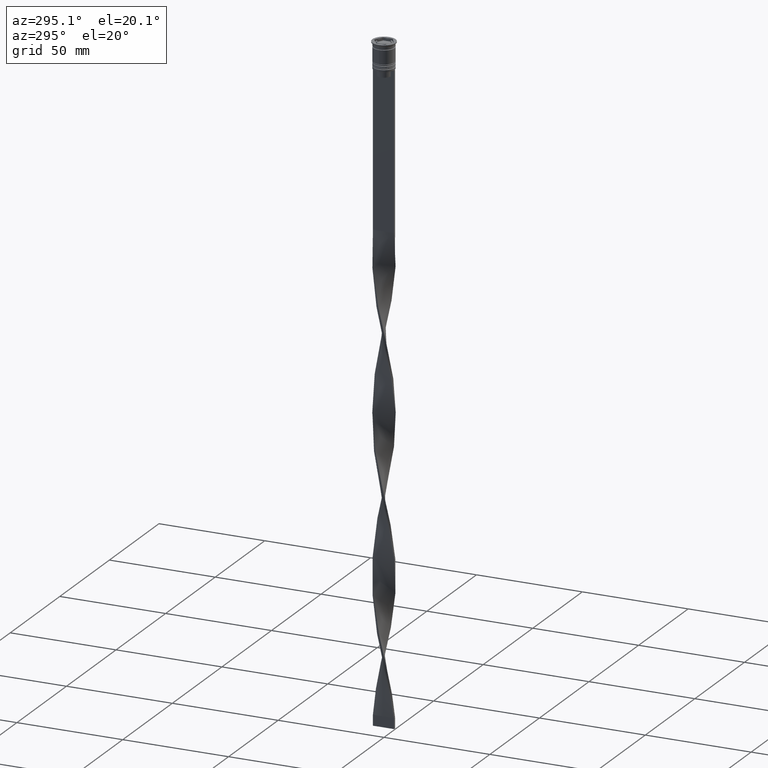
[diagram: clean part render]
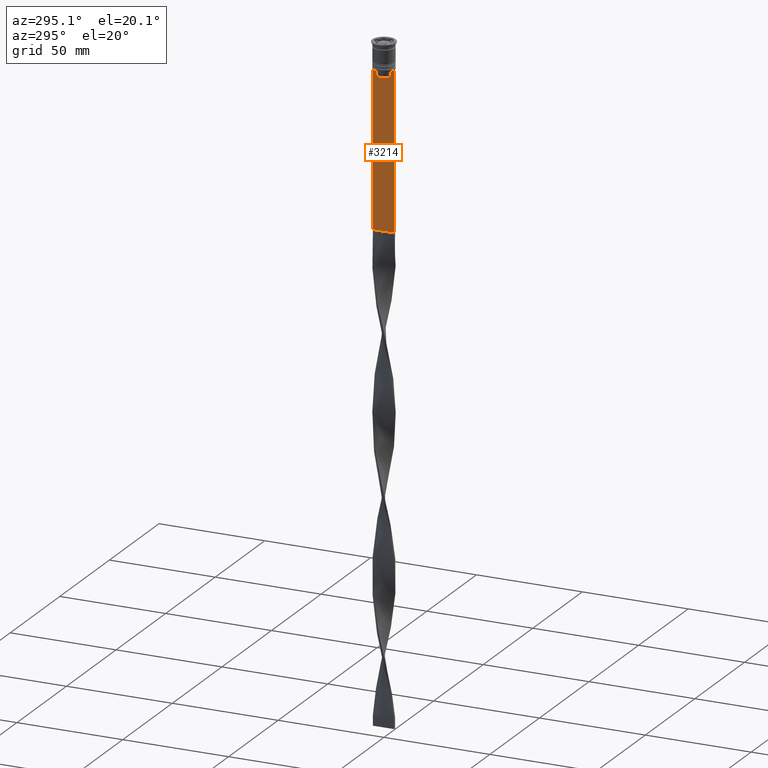
[diagram: same view with one face highlighted and labeled with its STEP entity id]
A machine part, auxiliary view. The second image highlights one B-rep face of the part: STEP entity #3214.
In plain terms, the highlighted planar face has unit normal (-1, 0, 0).
Its self-contained STEP definition (entity closure, byte-faithful):
#67 = ORIENTED_EDGE ( 'NONE', *, *, #2808, .F. ) ;
#178 = CARTESIAN_POINT ( 'NONE',  ( -0.5000000000000000000, 5.000000000000000888, -12.50000000000000000 ) ) ;
#200 = CARTESIAN_POINT ( 'NONE',  ( -0.5000000000000000000, -4.999999999999999112, -86.50000000000000000 ) ) ;
#251 = EDGE_CURVE ( 'NONE', #1096, #3737, #529, .T. ) ;
#310 = VERTEX_POINT ( 'NONE', #2619 ) ;
#334 = LINE ( 'NONE', #1951, #3707 ) ;
#495 = B_SPLINE_CURVE_WITH_KNOTS ( 'NONE', 3,
 ( #3459, #2160, #2795, #2541 ),
 .UNSPECIFIED., .F., .F.,
 ( 4, 4 ),
 ( 0.006644825462451552783, 0.007355321358912435097 ),
 .UNSPECIFIED. ) ;
#529 = LINE ( 'NONE', #1784, #2493 ) ;
#546 = DIRECTION ( 'NONE',  ( 0.000000000000000000, -1.000000000000000000, 0.000000000000000000 ) ) ;
#687 = CARTESIAN_POINT ( 'NONE',  ( -0.5000000000000000000, -3.699658232838647365, -12.66676999593996555 ) ) ;
#689 = EDGE_CURVE ( 'NONE', #2698, #1113, #495, .T. ) ;
#697 = ORIENTED_EDGE ( 'NONE', *, *, #3238, .F. ) ;
#792 = VECTOR ( 'NONE', #3616, 1000.000000000000000 ) ;
#797 = EDGE_CURVE ( 'NONE', #1210, #2698, #3150, .T. ) ;
#868 = DIRECTION ( 'NONE',  ( 0.000000000000000000, 1.000000000000000000, 0.000000000000000000 ) ) ;
#900 = VERTEX_POINT ( 'NONE', #3853 ) ;
#916 = VECTOR ( 'NONE', #1418, 1000.000000000000000 ) ;
#935 = DIRECTION ( 'NONE',  ( 0.000000000000000000, 0.000000000000000000, -1.000000000000000000 ) ) ;
#1007 = CARTESIAN_POINT ( 'NONE',  ( -0.5000000000000000000, -3.531412985305424801, -12.83345201382502765 ) ) ;
#1085 = CARTESIAN_POINT ( 'NONE',  ( -0.5000000000000000000, 3.399999999999998135, -15.50000000000000000 ) ) ;
#1096 = VERTEX_POINT ( 'NONE', #1143 ) ;
#1113 = VERTEX_POINT ( 'NONE', #2464 ) ;
#1143 = CARTESIAN_POINT ( 'NONE',  ( -0.5000000000000000000, -3.867815921162742754, -12.50000000000000000 ) ) ;
#1160 = VERTEX_POINT ( 'NONE', #1161 ) ;
#1161 = CARTESIAN_POINT ( 'NONE',  ( -0.5000000000000000000, 3.363034344160045652, -15.50000000000000000 ) ) ;
#1171 = EDGE_LOOP ( 'NONE', ( #2275, #3714, #3738, #2325, #697, #3278, #2376, #1615, #1298, #3036, #2524, #67 ) ) ;
#1199 = EDGE_CURVE ( 'NONE', #310, #1637, #2482, .T. ) ;
#1204 = DIRECTION ( 'NONE',  ( 0.000000000000000000, 0.000000000000000000, 1.000000000000000000 ) ) ;
#1210 = VERTEX_POINT ( 'NONE', #3098 ) ;
#1226 = DIRECTION ( 'NONE',  ( 0.000000000000000000, 0.000000000000000000, -1.000000000000000000 ) ) ;
#1253 = VECTOR ( 'NONE', #3438, 1000.000000000000000 ) ;
#1298 = ORIENTED_EDGE ( 'NONE', *, *, #2191, .F. ) ;
#1310 = CARTESIAN_POINT ( 'NONE',  ( -0.5000000000000000000, 3.363034344160045208, 0.000000000000000000 ) ) ;
#1395 = VECTOR ( 'NONE', #868, 1000.000000000000000 ) ;
#1418 = DIRECTION ( 'NONE',  ( -0.000000000000000000, -0.000000000000000000, 1.000000000000000000 ) ) ;
#1455 = VECTOR ( 'NONE', #4110, 1000.000000000000000 ) ;
#1459 = LINE ( 'NONE', #3885, #916 ) ;
#1481 = LINE ( 'NONE', #200, #1395 ) ;
#1615 = ORIENTED_EDGE ( 'NONE', *, *, #251, .F. ) ;
#1625 = LINE ( 'NONE', #1310, #1658 ) ;
#1637 = VERTEX_POINT ( 'NONE', #3351 ) ;
#1658 = VECTOR ( 'NONE', #935, 1000.000000000000000 ) ;
#1673 = CARTESIAN_POINT ( 'NONE',  ( -0.5000000000000000000, 5.000000000000000888, -2.450124378879110054 ) ) ;
#1686 = EDGE_CURVE ( 'NONE', #2269, #4057, #1459, .T. ) ;
#1784 = CARTESIAN_POINT ( 'NONE',  ( -0.5000000000000000000, -4.999999999999999112, -12.50000000000000000 ) ) ;
#1951 = CARTESIAN_POINT ( 'NONE',  ( -0.5000000000000000000, -4.999999999999999112, -12.50000000000000000 ) ) ;
#1998 = LINE ( 'NONE', #1673, #1253 ) ;
#2095 = LINE ( 'NONE', #3375, #3642 ) ;
#2113 = FACE_OUTER_BOUND ( 'NONE', #1171, .T. ) ;
#2160 = CARTESIAN_POINT ( 'NONE',  ( -0.5000000000000000000, 3.699657965831574913, -12.66677026074361301 ) ) ;
#2191 = EDGE_CURVE ( 'NONE', #4057, #1096, #2779, .T. ) ;
#2265 = EDGE_CURVE ( 'NONE', #3223, #900, #1998, .T. ) ;
#2266 = CARTESIAN_POINT ( 'NONE',  ( -0.5000000000000000000, -3.867815921162742754, -12.50000000000000000 ) ) ;
#2269 = VERTEX_POINT ( 'NONE', #2931 ) ;
#2275 = ORIENTED_EDGE ( 'NONE', *, *, #689, .F. ) ;
#2325 = ORIENTED_EDGE ( 'NONE', *, *, #2265, .T. ) ;
#2376 = ORIENTED_EDGE ( 'NONE', *, *, #2825, .F. ) ;
#2418 = CARTESIAN_POINT ( 'NONE',  ( -0.5000000000000000000, -4.999999999999999112, -2.450124378879110054 ) ) ;
#2464 = CARTESIAN_POINT ( 'NONE',  ( -0.5000000000000000000, 3.363034344160045208, -13.00000000000000178 ) ) ;
#2482 = LINE ( 'NONE', #4098, #3572 ) ;
#2493 = VECTOR ( 'NONE', #546, 1000.000000000000000 ) ;
#2524 = ORIENTED_EDGE ( 'NONE', *, *, #3137, .F. ) ;
#2541 = CARTESIAN_POINT ( 'NONE',  ( -0.5000000000000000000, 3.363034344160045208, -13.00000000000000178 ) ) ;
#2619 = CARTESIAN_POINT ( 'NONE',  ( -0.5000000000000000000, -4.999999999999999112, -12.50000000000000000 ) ) ;
#2668 = LINE ( 'NONE', #1085, #792 ) ;
#2698 = VERTEX_POINT ( 'NONE', #3721 ) ;
#2779 = B_SPLINE_CURVE_WITH_KNOTS ( 'NONE', 3,
 ( #3460, #1007, #687, #2266 ),
 .UNSPECIFIED., .F., .F.,
 ( 4, 4 ),
 ( 0.01632394437298965648, 0.01703543518243618576 ),
 .UNSPECIFIED. ) ;
#2790 = CARTESIAN_POINT ( 'NONE',  ( -0.5000000000000000000, -4.874423042781575788, -12.50000000000000000 ) ) ;
#2795 = CARTESIAN_POINT ( 'NONE',  ( -0.5000000000000000000, 3.531412678228260216, -12.83345231756357840 ) ) ;
#2808 = EDGE_CURVE ( 'NONE', #1113, #1160, #1625, .T. ) ;
#2825 = EDGE_CURVE ( 'NONE', #3737, #310, #334, .T. ) ;
#2841 = CARTESIAN_POINT ( 'NONE',  ( -0.5000000000000000000, -4.999999999999999112, -12.50000000000000000 ) ) ;
#2858 = AXIS2_PLACEMENT_3D ( 'NONE', #2418, #3065, #1204 ) ;
#2931 = CARTESIAN_POINT ( 'NONE',  ( -0.5000000000000000000, -3.363034344160045652, -15.50000000000000000 ) ) ;
#3036 = ORIENTED_EDGE ( 'NONE', *, *, #1686, .F. ) ;
#3065 = DIRECTION ( 'NONE',  ( -1.000000000000000000, 0.000000000000000000, 0.000000000000000000 ) ) ;
#3098 = CARTESIAN_POINT ( 'NONE',  ( -0.5000000000000000000, 4.874423042781575788, -12.50000000000000000 ) ) ;
#3137 = EDGE_CURVE ( 'NONE', #1160, #2269, #2668, .T. ) ;
#3150 = LINE ( 'NONE', #2841, #1455 ) ;
#3214 = ADVANCED_FACE ( 'NONE', ( #2113 ), #3720, .T. ) ;
#3223 = VERTEX_POINT ( 'NONE', #178 ) ;
#3238 = EDGE_CURVE ( 'NONE', #1637, #900, #1481, .T. ) ;
#3278 = ORIENTED_EDGE ( 'NONE', *, *, #1199, .F. ) ;
#3351 = CARTESIAN_POINT ( 'NONE',  ( -0.5000000000000000000, -4.999999999999999112, -86.50000000000000000 ) ) ;
#3375 = CARTESIAN_POINT ( 'NONE',  ( -0.5000000000000000000, -4.999999999999999112, -12.50000000000000000 ) ) ;
#3438 = DIRECTION ( 'NONE',  ( 0.000000000000000000, 0.000000000000000000, -1.000000000000000000 ) ) ;
#3459 = CARTESIAN_POINT ( 'NONE',  ( -0.5000000000000000000, 3.867815921162742754, -12.50000000000000000 ) ) ;
#3460 = CARTESIAN_POINT ( 'NONE',  ( -0.5000000000000000000, -3.363034344160045208, -13.00000000000000178 ) ) ;
#3474 = DIRECTION ( 'NONE',  ( 0.000000000000000000, -1.000000000000000000, 0.000000000000000000 ) ) ;
#3572 = VECTOR ( 'NONE', #1226, 1000.000000000000000 ) ;
#3616 = DIRECTION ( 'NONE',  ( 0.000000000000000000, -1.000000000000000000, 0.000000000000000000 ) ) ;
#3642 = VECTOR ( 'NONE', #3742, 1000.000000000000000 ) ;
#3707 = VECTOR ( 'NONE', #3474, 1000.000000000000000 ) ;
#3714 = ORIENTED_EDGE ( 'NONE', *, *, #797, .F. ) ;
#3720 = PLANE ( 'NONE',  #2858 ) ;
#3721 = CARTESIAN_POINT ( 'NONE',  ( -0.5000000000000000000, 3.867815921162742754, -12.50000000000000000 ) ) ;
#3737 = VERTEX_POINT ( 'NONE', #2790 ) ;
#3738 = ORIENTED_EDGE ( 'NONE', *, *, #3740, .F. ) ;
#3740 = EDGE_CURVE ( 'NONE', #3223, #1210, #2095, .T. ) ;
#3742 = DIRECTION ( 'NONE',  ( 0.000000000000000000, -1.000000000000000000, 0.000000000000000000 ) ) ;
#3816 = CARTESIAN_POINT ( 'NONE',  ( -0.5000000000000000000, -3.363034344160045208, -13.00000000000000178 ) ) ;
#3853 = CARTESIAN_POINT ( 'NONE',  ( -0.5000000000000000000, 5.000000000000000888, -86.50000000000000000 ) ) ;
#3885 = CARTESIAN_POINT ( 'NONE',  ( -0.5000000000000000000, -3.363034344160045208, 0.000000000000000000 ) ) ;
#4057 = VERTEX_POINT ( 'NONE', #3816 ) ;
#4098 = CARTESIAN_POINT ( 'NONE',  ( -0.5000000000000000000, -4.999999999999999112, -2.450124378879110054 ) ) ;
#4110 = DIRECTION ( 'NONE',  ( 0.000000000000000000, -1.000000000000000000, 0.000000000000000000 ) ) ;